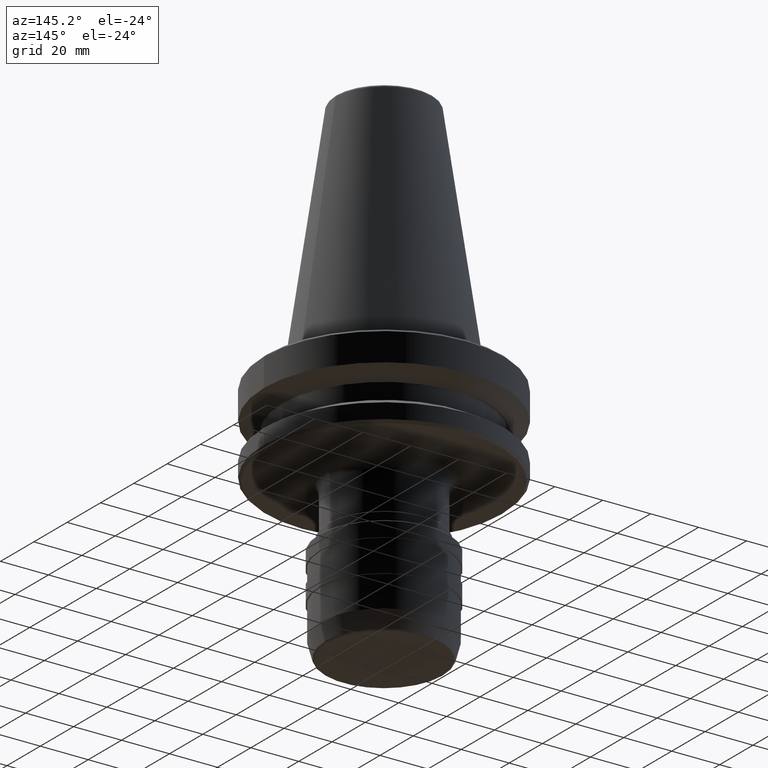
[diagram: clean part render]
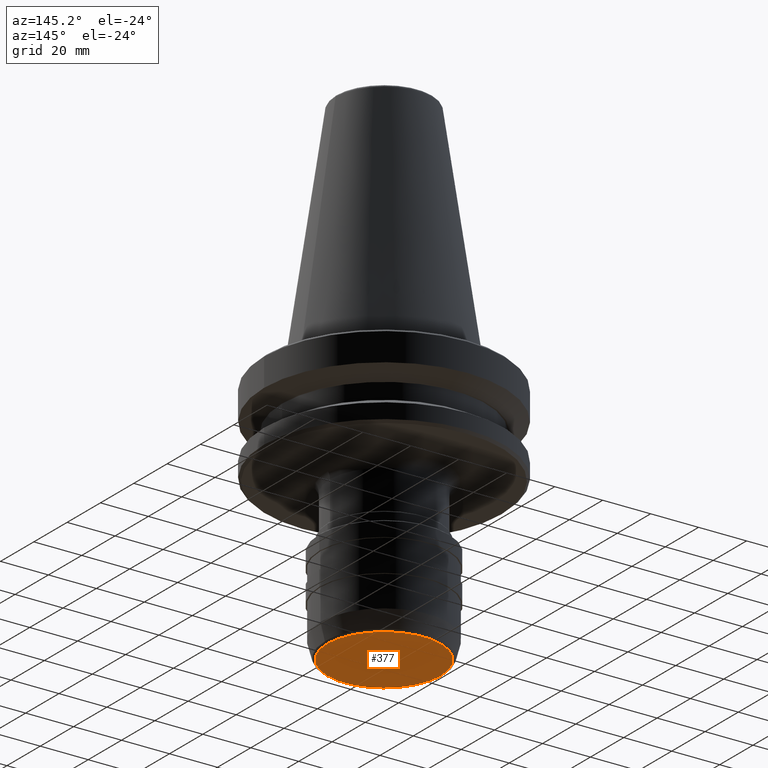
[diagram: same view with one face highlighted and labeled with its STEP entity id]
A machine part, auxiliary view. The second image highlights one B-rep face of the part: STEP entity #377.
In plain terms, the highlighted planar face has unit normal (0, 0, -1).
Its self-contained STEP definition (entity closure, byte-faithful):
#100 = ORIENTED_EDGE ( 'NONE', *, *, #1538, .F. ) ;
#111 = DIRECTION ( 'NONE',  ( 1.000000000000000000, 0.0000000000000000000, 0.0000000000000000000 ) ) ;
#132 = CIRCLE ( 'NONE', #616, 23.72305406878760800 ) ;
#268 = AXIS2_PLACEMENT_3D ( 'NONE', #1147, #388, #1278 ) ;
#313 = CARTESIAN_POINT ( 'NONE',  ( 23.72305406878760800, 0.0000000000000000000, -105.0000000000013100 ) ) ;
#337 = DIRECTION ( 'NONE',  ( 0.0000000000000000000, 0.0000000000000000000, -1.000000000000000000 ) ) ;
#377 = ADVANCED_FACE ( 'NONE', ( #1134 ), #869, .T. ) ;
#388 = DIRECTION ( 'NONE',  ( -0.0000000000000000000, -0.0000000000000000000, 1.000000000000000000 ) ) ;
#616 = AXIS2_PLACEMENT_3D ( 'NONE', #1635, #861, #111 ) ;
#714 = ORIENTED_EDGE ( 'NONE', *, *, #1167, .F. ) ;
#787 = DIRECTION ( 'NONE',  ( -1.000000000000000000, 0.0000000000000000000, -0.0000000000000000000 ) ) ;
#812 = VERTEX_POINT ( 'NONE', #852 ) ;
#848 = CIRCLE ( 'NONE', #268, 23.72305406878760800 ) ;
#852 = CARTESIAN_POINT ( 'NONE',  ( -23.72305406878760800, 2.964382121702964400E-015, -105.0000000000013100 ) ) ;
#860 = VERTEX_POINT ( 'NONE', #313 ) ;
#861 = DIRECTION ( 'NONE',  ( -0.0000000000000000000, -0.0000000000000000000, 1.000000000000000000 ) ) ;
#869 = PLANE ( 'NONE',  #1618 ) ;
#1134 = FACE_OUTER_BOUND ( 'NONE', #1455, .T. ) ;
#1147 = CARTESIAN_POINT ( 'NONE',  ( 0.0000000000000000000, 0.0000000000000000000, -105.0000000000013100 ) ) ;
#1167 = EDGE_CURVE ( 'NONE', #812, #860, #848, .T. ) ;
#1278 = DIRECTION ( 'NONE',  ( 1.000000000000000000, 0.0000000000000000000, 0.0000000000000000000 ) ) ;
#1428 = CARTESIAN_POINT ( 'NONE',  ( 0.0000000000000000000, 3.307047307393565900E-012, -105.0000000000015300 ) ) ;
#1455 = EDGE_LOOP ( 'NONE', ( #100, #714 ) ) ;
#1538 = EDGE_CURVE ( 'NONE', #860, #812, #132, .T. ) ;
#1618 = AXIS2_PLACEMENT_3D ( 'NONE', #1428, #337, #787 ) ;
#1635 = CARTESIAN_POINT ( 'NONE',  ( 0.0000000000000000000, 0.0000000000000000000, -105.0000000000013100 ) ) ;